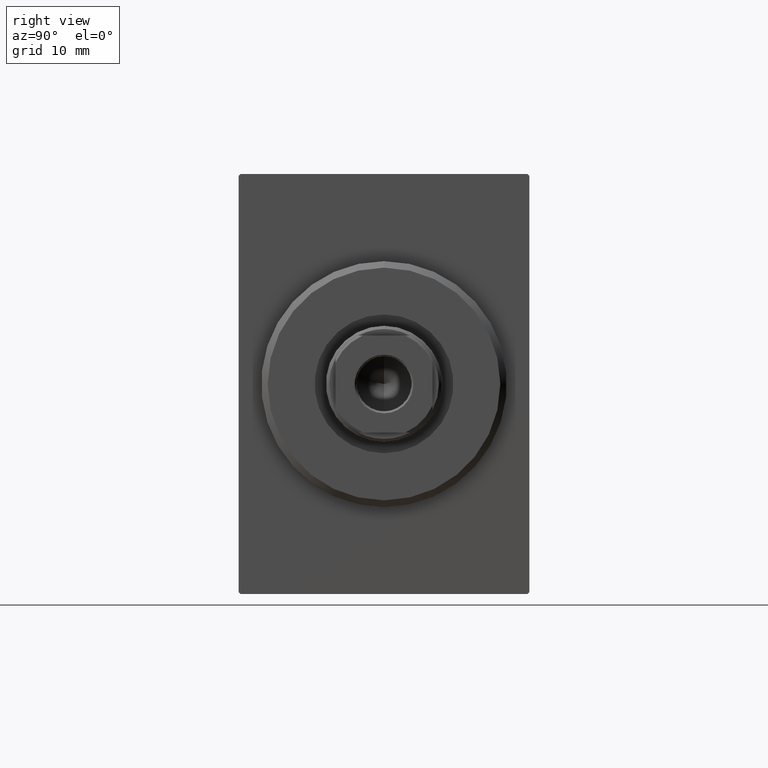
[diagram: clean part render]
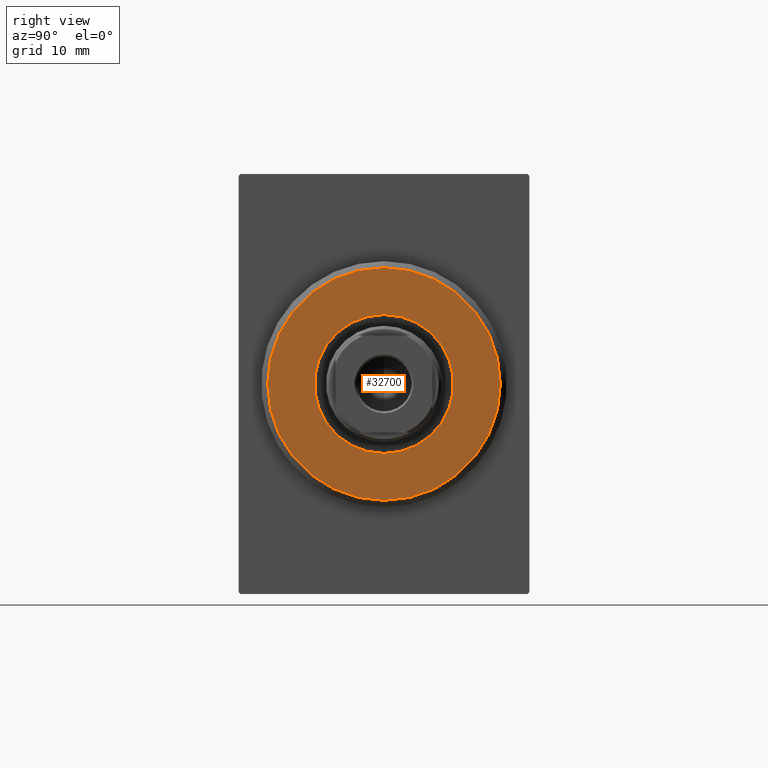
[diagram: same view with one face highlighted and labeled with its STEP entity id]
A machine part, right view. The second image highlights one B-rep face of the part: STEP entity #32700.
In plain terms, the highlighted planar face has unit normal (1, 0, 0).
Its self-contained STEP definition (entity closure, byte-faithful):
#118 = DIRECTION ( 'NONE',  ( 1.000000000000000000, -0.000000000000000000, 0.000000000000000000 ) ) ;
#319 = EDGE_CURVE ( 'NONE', #42674, #33906, #16107, .T. ) ;
#1713 = CIRCLE ( 'NONE', #33603, 10.75000000000000000 ) ;
#1879 = ORIENTED_EDGE ( 'NONE', *, *, #15448, .T. ) ;
#2192 = CARTESIAN_POINT ( 'NONE',  ( 3.000000000000000000, 0.000000000000000000, 10.75000000000000000 ) ) ;
#2567 = DIRECTION ( 'NONE',  ( 0.000000000000000000, 0.000000000000000000, -1.000000000000000000 ) ) ;
#3298 = AXIS2_PLACEMENT_3D ( 'NONE', #29878, #118, #26396 ) ;
#3646 = CIRCLE ( 'NONE', #11990, 17.99999999999999645 ) ;
#4029 = EDGE_LOOP ( 'NONE', ( #1879, #13102 ) ) ;
#5310 = VERTEX_POINT ( 'NONE', #27877 ) ;
#5897 = DIRECTION ( 'NONE',  ( -1.000000000000000000, 0.000000000000000000, -0.000000000000000000 ) ) ;
#6189 = CARTESIAN_POINT ( 'NONE',  ( 3.000000000000000000, 0.000000000000000000, 17.99999999999999645 ) ) ;
#6862 = DIRECTION ( 'NONE',  ( 0.000000000000000000, 0.000000000000000000, -1.000000000000000000 ) ) ;
#7288 = EDGE_CURVE ( 'NONE', #17888, #5310, #3646, .T. ) ;
#9499 = DIRECTION ( 'NONE',  ( 1.000000000000000000, -0.000000000000000000, 0.000000000000000000 ) ) ;
#11990 = AXIS2_PLACEMENT_3D ( 'NONE', #25589, #9499, #35342 ) ;
#12554 = EDGE_CURVE ( 'NONE', #5310, #17888, #29275, .T. ) ;
#12621 = DIRECTION ( 'NONE',  ( 0.000000000000000000, 0.000000000000000000, -1.000000000000000000 ) ) ;
#13102 = ORIENTED_EDGE ( 'NONE', *, *, #319, .T. ) ;
#13157 = PLANE ( 'NONE',  #3298 ) ;
#13194 = DIRECTION ( 'NONE',  ( 1.000000000000000000, -0.000000000000000000, 0.000000000000000000 ) ) ;
#13231 = ORIENTED_EDGE ( 'NONE', *, *, #7288, .T. ) ;
#14013 = AXIS2_PLACEMENT_3D ( 'NONE', #29778, #5897, #12621 ) ;
#15448 = EDGE_CURVE ( 'NONE', #33906, #42674, #1713, .T. ) ;
#16107 = CIRCLE ( 'NONE', #14013, 10.75000000000000000 ) ;
#17128 = ORIENTED_EDGE ( 'NONE', *, *, #12554, .T. ) ;
#17888 = VERTEX_POINT ( 'NONE', #6189 ) ;
#18667 = EDGE_LOOP ( 'NONE', ( #13231, #17128 ) ) ;
#25589 = CARTESIAN_POINT ( 'NONE',  ( 3.000000000000000000, 0.000000000000000000, 0.000000000000000000 ) ) ;
#26188 = CARTESIAN_POINT ( 'NONE',  ( 3.000000000000000000, 0.000000000000000000, 0.000000000000000000 ) ) ;
#26396 = DIRECTION ( 'NONE',  ( 0.000000000000000000, 0.000000000000000000, -1.000000000000000000 ) ) ;
#27877 = CARTESIAN_POINT ( 'NONE',  ( 3.000000000000000000, 2.265596578422603002E-15, -17.99999999999999645 ) ) ;
#29275 = CIRCLE ( 'NONE', #41025, 17.99999999999999645 ) ;
#29658 = FACE_OUTER_BOUND ( 'NONE', #18667, .T. ) ;
#29778 = CARTESIAN_POINT ( 'NONE',  ( 3.000000000000000000, 0.000000000000000000, 0.000000000000000000 ) ) ;
#29878 = CARTESIAN_POINT ( 'NONE',  ( 3.000000000000000000, 0.000000000000000000, 0.000000000000000000 ) ) ;
#31396 = CARTESIAN_POINT ( 'NONE',  ( 3.000000000000000000, 1.316495309083404223E-15, -10.75000000000000000 ) ) ;
#32700 = ADVANCED_FACE ( 'NONE', ( #29658, #42876 ), #13157, .T. ) ;
#33603 = AXIS2_PLACEMENT_3D ( 'NONE', #26188, #38984, #6862 ) ;
#33906 = VERTEX_POINT ( 'NONE', #2192 ) ;
#35342 = DIRECTION ( 'NONE',  ( 0.000000000000000000, 0.000000000000000000, -1.000000000000000000 ) ) ;
#38984 = DIRECTION ( 'NONE',  ( -1.000000000000000000, 0.000000000000000000, -0.000000000000000000 ) ) ;
#39871 = CARTESIAN_POINT ( 'NONE',  ( 3.000000000000000000, 0.000000000000000000, 0.000000000000000000 ) ) ;
#41025 = AXIS2_PLACEMENT_3D ( 'NONE', #39871, #13194, #2567 ) ;
#42674 = VERTEX_POINT ( 'NONE', #31396 ) ;
#42876 = FACE_BOUND ( 'NONE', #4029, .T. ) ;